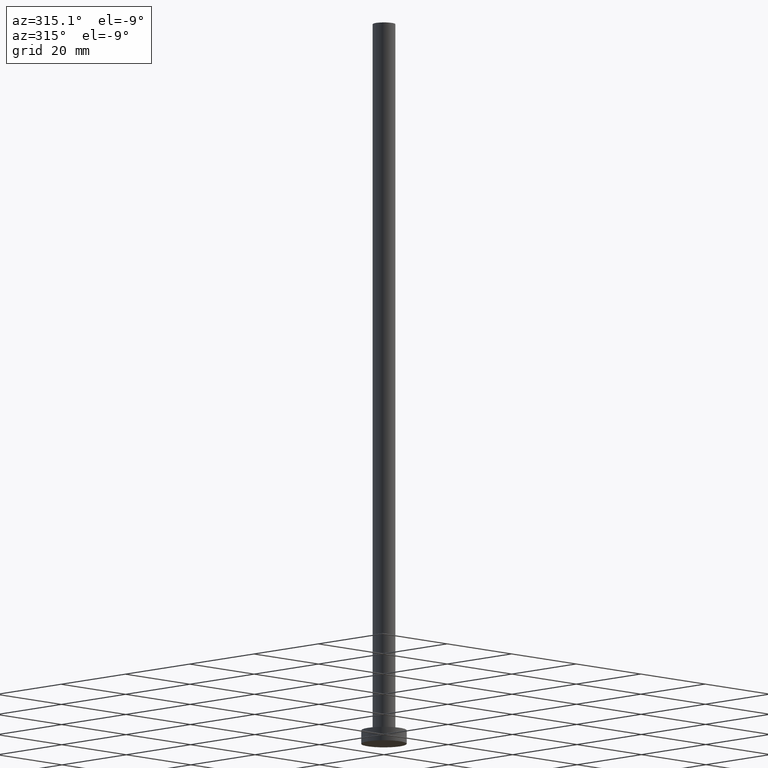
[diagram: clean part render]
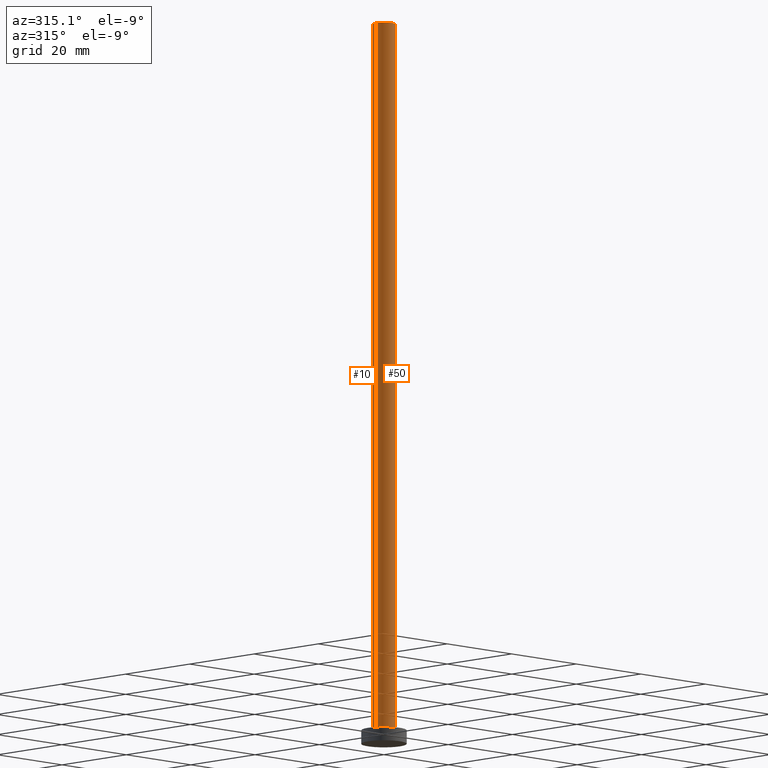
[diagram: same view with one multi-face feature highlighted, each face labeled with its STEP entity id]
A machine part, auxiliary view. The highlighted faces form ONE feature: a constant-radius fillet chain: 2 tangent blend faces with common blend radius 2.5 mm. The faces share edges in the B-rep.
Their STEP definitions:
[1] entity #10 (Cylinder):
#7 = DIRECTION ( 'NONE',  ( -0.000000000000000000, -0.000000000000000000, -1.000000000000000000 ) ) ;
#8 = CARTESIAN_POINT ( 'NONE',  ( -2.500000000000000000, 0.000000000000000000, 160.0000000000000000 ) ) ;
#10 = ADVANCED_FACE ( 'NONE', ( #127 ), #203, .T. ) ;
#14 = VERTEX_POINT ( 'NONE', #31 ) ;
#17 = CIRCLE ( 'NONE', #142, 2.500000000000000000 ) ;
#23 = VECTOR ( 'NONE', #7, 1000.000000000000000 ) ;
#27 = CARTESIAN_POINT ( 'NONE',  ( 2.500000000000000000, 3.061616997868383141E-16, 160.0000000000000000 ) ) ;
#29 = VECTOR ( 'NONE', #189, 1000.000000000000000 ) ;
#31 = CARTESIAN_POINT ( 'NONE',  ( -2.500000000000000000, 0.000000000000000000, 3.000000000000000000 ) ) ;
#33 = AXIS2_PLACEMENT_3D ( 'NONE', #77, #148, #224 ) ;
#34 = VERTEX_POINT ( 'NONE', #197 ) ;
#36 = DIRECTION ( 'NONE',  ( 0.000000000000000000, 0.000000000000000000, 1.000000000000000000 ) ) ;
#40 = VERTEX_POINT ( 'NONE', #86 ) ;
#52 = CIRCLE ( 'NONE', #221, 2.500000000000000000 ) ;
#56 = LINE ( 'NONE', #8, #23 ) ;
#70 = CARTESIAN_POINT ( 'NONE',  ( 0.000000000000000000, 0.000000000000000000, 3.000000000000000000 ) ) ;
#71 = CARTESIAN_POINT ( 'NONE',  ( 0.000000000000000000, 0.000000000000000000, 160.0000000000000000 ) ) ;
#72 = DIRECTION ( 'NONE',  ( 1.000000000000000000, 0.000000000000000000, 0.000000000000000000 ) ) ;
#74 = EDGE_CURVE ( 'NONE', #40, #14, #52, .T. ) ;
#76 = LINE ( 'NONE', #131, #29 ) ;
#77 = CARTESIAN_POINT ( 'NONE',  ( 0.000000000000000000, 0.000000000000000000, 160.0000000000000000 ) ) ;
#86 = CARTESIAN_POINT ( 'NONE',  ( 2.500000000000000000, 3.061616997868383141E-16, 3.000000000000000000 ) ) ;
#103 = VERTEX_POINT ( 'NONE', #27 ) ;
#108 = DIRECTION ( 'NONE',  ( 1.000000000000000000, 0.000000000000000000, 0.000000000000000000 ) ) ;
#126 = ORIENTED_EDGE ( 'NONE', *, *, #143, .F. ) ;
#127 = FACE_OUTER_BOUND ( 'NONE', #238, .T. ) ;
#131 = CARTESIAN_POINT ( 'NONE',  ( 2.500000000000000000, 3.061616997868383141E-16, 160.0000000000000000 ) ) ;
#139 = EDGE_CURVE ( 'NONE', #34, #14, #56, .T. ) ;
#142 = AXIS2_PLACEMENT_3D ( 'NONE', #71, #243, #72 ) ;
#143 = EDGE_CURVE ( 'NONE', #103, #34, #17, .T. ) ;
#148 = DIRECTION ( 'NONE',  ( -0.000000000000000000, -0.000000000000000000, -1.000000000000000000 ) ) ;
#159 = ORIENTED_EDGE ( 'NONE', *, *, #74, .T. ) ;
#189 = DIRECTION ( 'NONE',  ( -0.000000000000000000, -0.000000000000000000, -1.000000000000000000 ) ) ;
#196 = ORIENTED_EDGE ( 'NONE', *, *, #139, .F. ) ;
#197 = CARTESIAN_POINT ( 'NONE',  ( -2.500000000000000000, 0.000000000000000000, 160.0000000000000000 ) ) ;
#203 = CYLINDRICAL_SURFACE ( 'NONE', #33, 2.500000000000000000 ) ;
#221 = AXIS2_PLACEMENT_3D ( 'NONE', #70, #36, #108 ) ;
#223 = ORIENTED_EDGE ( 'NONE', *, *, #231, .T. ) ;
#224 = DIRECTION ( 'NONE',  ( -1.000000000000000000, 0.000000000000000000, 0.000000000000000000 ) ) ;
#231 = EDGE_CURVE ( 'NONE', #103, #40, #76, .T. ) ;
#238 = EDGE_LOOP ( 'NONE', ( #126, #223, #159, #196 ) ) ;
#243 = DIRECTION ( 'NONE',  ( 0.000000000000000000, 0.000000000000000000, 1.000000000000000000 ) ) ;
[2] entity #50 (Cylinder):
#7 = DIRECTION ( 'NONE',  ( -0.000000000000000000, -0.000000000000000000, -1.000000000000000000 ) ) ;
#8 = CARTESIAN_POINT ( 'NONE',  ( -2.500000000000000000, 0.000000000000000000, 160.0000000000000000 ) ) ;
#14 = VERTEX_POINT ( 'NONE', #31 ) ;
#15 = AXIS2_PLACEMENT_3D ( 'NONE', #124, #160, #184 ) ;
#23 = VECTOR ( 'NONE', #7, 1000.000000000000000 ) ;
#25 = CIRCLE ( 'NONE', #79, 2.500000000000000000 ) ;
#27 = CARTESIAN_POINT ( 'NONE',  ( 2.500000000000000000, 3.061616997868383141E-16, 160.0000000000000000 ) ) ;
#29 = VECTOR ( 'NONE', #189, 1000.000000000000000 ) ;
#31 = CARTESIAN_POINT ( 'NONE',  ( -2.500000000000000000, 0.000000000000000000, 3.000000000000000000 ) ) ;
#34 = VERTEX_POINT ( 'NONE', #197 ) ;
#40 = VERTEX_POINT ( 'NONE', #86 ) ;
#50 = ADVANCED_FACE ( 'NONE', ( #215 ), #187, .T. ) ;
#54 = AXIS2_PLACEMENT_3D ( 'NONE', #115, #128, #191 ) ;
#56 = LINE ( 'NONE', #8, #23 ) ;
#61 = EDGE_LOOP ( 'NONE', ( #240, #164, #120, #201 ) ) ;
#63 = DIRECTION ( 'NONE',  ( 0.000000000000000000, 0.000000000000000000, 1.000000000000000000 ) ) ;
#64 = CIRCLE ( 'NONE', #54, 2.500000000000000000 ) ;
#76 = LINE ( 'NONE', #131, #29 ) ;
#79 = AXIS2_PLACEMENT_3D ( 'NONE', #253, #63, #150 ) ;
#86 = CARTESIAN_POINT ( 'NONE',  ( 2.500000000000000000, 3.061616997868383141E-16, 3.000000000000000000 ) ) ;
#103 = VERTEX_POINT ( 'NONE', #27 ) ;
#115 = CARTESIAN_POINT ( 'NONE',  ( 0.000000000000000000, 0.000000000000000000, 160.0000000000000000 ) ) ;
#120 = ORIENTED_EDGE ( 'NONE', *, *, #139, .T. ) ;
#124 = CARTESIAN_POINT ( 'NONE',  ( 0.000000000000000000, 0.000000000000000000, 160.0000000000000000 ) ) ;
#128 = DIRECTION ( 'NONE',  ( 0.000000000000000000, 0.000000000000000000, 1.000000000000000000 ) ) ;
#131 = CARTESIAN_POINT ( 'NONE',  ( 2.500000000000000000, 3.061616997868383141E-16, 160.0000000000000000 ) ) ;
#139 = EDGE_CURVE ( 'NONE', #34, #14, #56, .T. ) ;
#150 = DIRECTION ( 'NONE',  ( 1.000000000000000000, 0.000000000000000000, 0.000000000000000000 ) ) ;
#160 = DIRECTION ( 'NONE',  ( -0.000000000000000000, -0.000000000000000000, -1.000000000000000000 ) ) ;
#164 = ORIENTED_EDGE ( 'NONE', *, *, #180, .F. ) ;
#180 = EDGE_CURVE ( 'NONE', #34, #103, #64, .T. ) ;
#184 = DIRECTION ( 'NONE',  ( -1.000000000000000000, 0.000000000000000000, 0.000000000000000000 ) ) ;
#187 = CYLINDRICAL_SURFACE ( 'NONE', #15, 2.500000000000000000 ) ;
#188 = EDGE_CURVE ( 'NONE', #14, #40, #25, .T. ) ;
#189 = DIRECTION ( 'NONE',  ( -0.000000000000000000, -0.000000000000000000, -1.000000000000000000 ) ) ;
#191 = DIRECTION ( 'NONE',  ( 1.000000000000000000, 0.000000000000000000, 0.000000000000000000 ) ) ;
#197 = CARTESIAN_POINT ( 'NONE',  ( -2.500000000000000000, 0.000000000000000000, 160.0000000000000000 ) ) ;
#201 = ORIENTED_EDGE ( 'NONE', *, *, #188, .T. ) ;
#215 = FACE_OUTER_BOUND ( 'NONE', #61, .T. ) ;
#231 = EDGE_CURVE ( 'NONE', #103, #40, #76, .T. ) ;
#240 = ORIENTED_EDGE ( 'NONE', *, *, #231, .F. ) ;
#253 = CARTESIAN_POINT ( 'NONE',  ( 0.000000000000000000, 0.000000000000000000, 3.000000000000000000 ) ) ;